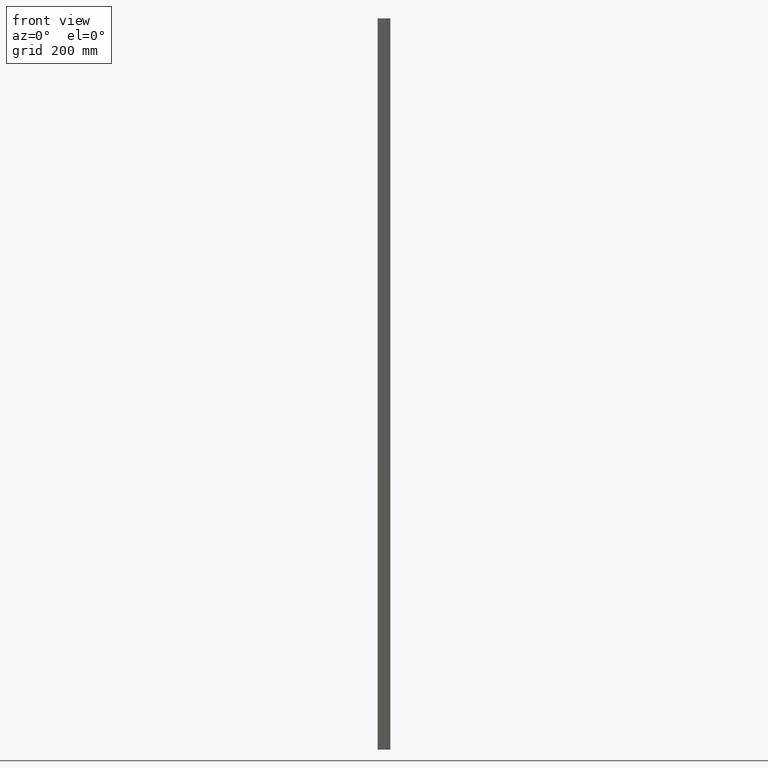
[diagram: clean part render]
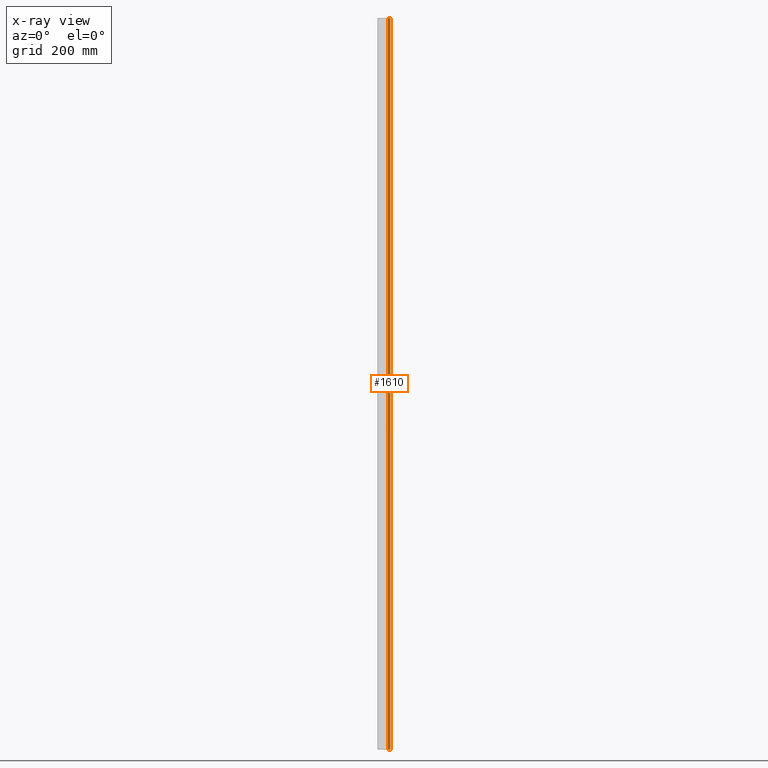
[diagram: x-ray — body ghosted, one internal face saturated and labeled with its STEP entity id]
A machine part, front view, then the same camera in x-ray: the body is ghosted and one INTERNAL B-rep face — a face not visible from any outside direction — is saturated and labeled: STEP entity #1610.
In plain terms, the highlighted planar face has unit normal (0, 1, -0).
Its self-contained STEP definition (entity closure, byte-faithful):
#125 = VECTOR ( 'NONE', #1030, 1000.000000000000000 ) ;
#179 = AXIS2_PLACEMENT_3D ( 'NONE', #1171, #1133, #1129 ) ;
#188 = VECTOR ( 'NONE', #1190, 1000.000000000000000 ) ;
#247 = VECTOR ( 'NONE', #356, 1000.000000000000000 ) ;
#252 = VECTOR ( 'NONE', #314, 1000.000000000000000 ) ;
#297 = LINE ( 'NONE', #312, #247 ) ;
#312 = CARTESIAN_POINT ( 'NONE',  ( 34.39999999999947300, 0.05999999999945864600, 0.0000000000000000000 ) ) ;
#313 = CARTESIAN_POINT ( 'NONE',  ( 34.39999999999947300, 0.05999999999945864600, 300.0000000000000000 ) ) ;
#314 = DIRECTION ( 'NONE',  ( -0.0000000000000000000, -0.0000000000000000000, -1.000000000000000000 ) ) ;
#334 = LINE ( 'NONE', #313, #252 ) ;
#356 = DIRECTION ( 'NONE',  ( 1.000000000000000000, -0.0000000000000000000, -0.0000000000000000000 ) ) ;
#456 = ORIENTED_EDGE ( 'NONE', *, *, #1632, .T. ) ;
#467 = ORIENTED_EDGE ( 'NONE', *, *, #1575, .F. ) ;
#474 = ORIENTED_EDGE ( 'NONE', *, *, #1675, .F. ) ;
#476 = ORIENTED_EDGE ( 'NONE', *, *, #1667, .T. ) ;
#764 = VERTEX_POINT ( 'NONE', #905 ) ;
#786 = VERTEX_POINT ( 'NONE', #976 ) ;
#843 = VERTEX_POINT ( 'NONE', #979 ) ;
#849 = EDGE_LOOP ( 'NONE', ( #476, #474, #467, #456 ) ) ;
#851 = VERTEX_POINT ( 'NONE', #985 ) ;
#905 = CARTESIAN_POINT ( 'NONE',  ( 27.63786619151568400, 0.05999999999945805600, 0.0000000000000000000 ) ) ;
#976 = CARTESIAN_POINT ( 'NONE',  ( 34.39999999999947300, 0.05999999999945864600, 0.0000000000000000000 ) ) ;
#979 = CARTESIAN_POINT ( 'NONE',  ( 27.63786619151568400, 0.05999999999945805600, 2000.000000000000000 ) ) ;
#985 = CARTESIAN_POINT ( 'NONE',  ( 34.39999999999947300, 0.05999999999945864600, 2000.000000000000000 ) ) ;
#1002 = CARTESIAN_POINT ( 'NONE',  ( 0.03768049922007291700, 0.05999999999945805600, 2000.000000000000000 ) ) ;
#1019 = LINE ( 'NONE', #1002, #125 ) ;
#1030 = DIRECTION ( 'NONE',  ( 1.000000000000000000, 0.0000000000000000000, 0.0000000000000000000 ) ) ;
#1129 = DIRECTION ( 'NONE',  ( 0.0000000000000000000, 0.0000000000000000000, 1.000000000000000000 ) ) ;
#1133 = DIRECTION ( 'NONE',  ( 0.0000000000000000000, 1.000000000000000000, -0.0000000000000000000 ) ) ;
#1134 = FACE_OUTER_BOUND ( 'NONE', #849, .T. ) ;
#1164 = PLANE ( 'NONE',  #179 ) ;
#1171 = CARTESIAN_POINT ( 'NONE',  ( 34.39999999999947300, 0.05999999999945864600, 300.0000000000000000 ) ) ;
#1187 = LINE ( 'NONE', #1210, #188 ) ;
#1190 = DIRECTION ( 'NONE',  ( -0.0000000000000000000, -0.0000000000000000000, -1.000000000000000000 ) ) ;
#1210 = CARTESIAN_POINT ( 'NONE',  ( 27.63786619151568400, 0.05999999999945805600, 300.0000000000000000 ) ) ;
#1575 = EDGE_CURVE ( 'NONE', #843, #851, #1019, .T. ) ;
#1610 = ADVANCED_FACE ( 'NONE', ( #1134 ), #1164, .F. ) ;
#1632 = EDGE_CURVE ( 'NONE', #843, #764, #1187, .T. ) ;
#1667 = EDGE_CURVE ( 'NONE', #764, #786, #297, .T. ) ;
#1675 = EDGE_CURVE ( 'NONE', #851, #786, #334, .T. ) ;